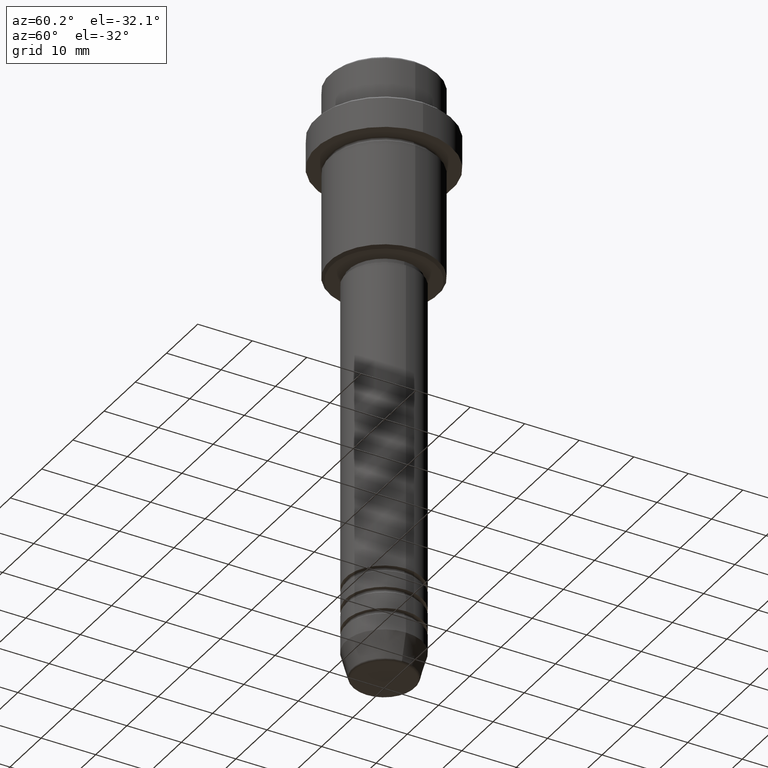
[diagram: clean part render]
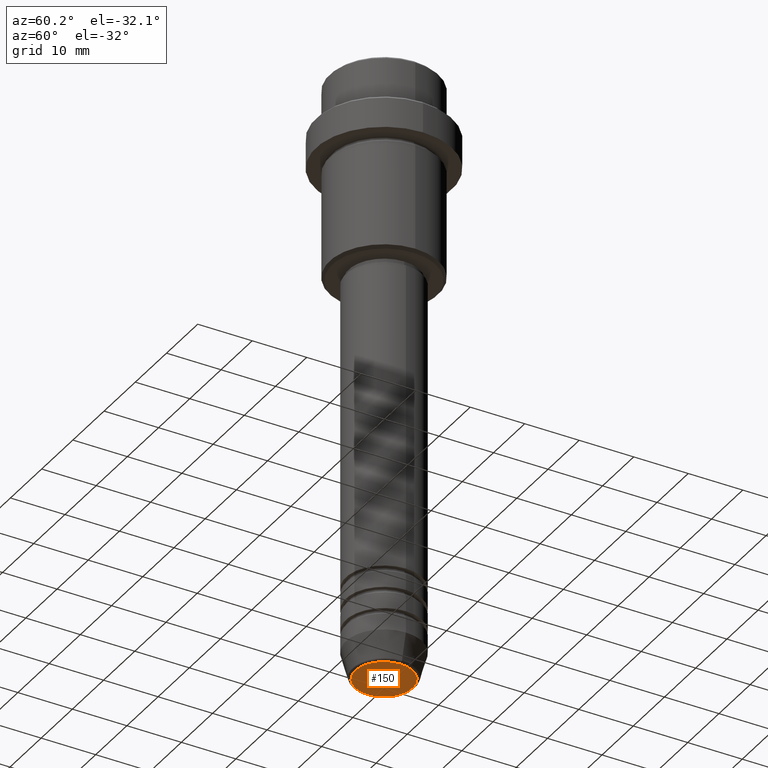
[diagram: same view with one face highlighted and labeled with its STEP entity id]
A machine part, auxiliary view. The second image highlights one B-rep face of the part: STEP entity #150.
In plain terms, the highlighted planar face has unit normal (0, -0, 1).
Its self-contained STEP definition (entity closure, byte-faithful):
#87 = DIRECTION ( 'NONE',  ( 1.000000000000000000, 0.000000000000000000, 0.000000000000000000 ) ) ;
#89 = DIRECTION ( 'NONE',  ( 0.000000000000000000, 0.000000000000000000, -1.000000000000000000 ) ) ;
#150 = ADVANCED_FACE ( 'NONE', ( #667 ), #1000, .F. ) ;
#326 = VERTEX_POINT ( 'NONE', #1057 ) ;
#447 = CIRCLE ( 'NONE', #941, 5.276590543854905668 ) ;
#449 = CARTESIAN_POINT ( 'NONE',  ( 0.000000000000000000, 0.000000000000000000, -110.9999999999999858 ) ) ;
#485 = CIRCLE ( 'NONE', #1318, 5.276590543854905668 ) ;
#496 = AXIS2_PLACEMENT_3D ( 'NONE', #449, #896, #1334 ) ;
#606 = CARTESIAN_POINT ( 'NONE',  ( 0.000000000000000000, 0.000000000000000000, -110.9999999999999858 ) ) ;
#613 = DIRECTION ( 'NONE',  ( 1.000000000000000000, 0.000000000000000000, 0.000000000000000000 ) ) ;
#667 = FACE_OUTER_BOUND ( 'NONE', #1086, .T. ) ;
#716 = CARTESIAN_POINT ( 'NONE',  ( 5.276590543854905668, 0.000000000000000000, -110.9999999999999858 ) ) ;
#754 = ORIENTED_EDGE ( 'NONE', *, *, #817, .T. ) ;
#817 = EDGE_CURVE ( 'NONE', #1329, #326, #485, .T. ) ;
#896 = DIRECTION ( 'NONE',  ( 0.000000000000000000, -0.000000000000000000, 1.000000000000000000 ) ) ;
#941 = AXIS2_PLACEMENT_3D ( 'NONE', #606, #89, #613 ) ;
#1000 = PLANE ( 'NONE',  #496 ) ;
#1057 = CARTESIAN_POINT ( 'NONE',  ( -5.276590543854905668, 6.757689212787771832E-16, -110.9999999999999858 ) ) ;
#1086 = EDGE_LOOP ( 'NONE', ( #754, #1260 ) ) ;
#1149 = CARTESIAN_POINT ( 'NONE',  ( 0.000000000000000000, 0.000000000000000000, -110.9999999999999858 ) ) ;
#1260 = ORIENTED_EDGE ( 'NONE', *, *, #1286, .T. ) ;
#1286 = EDGE_CURVE ( 'NONE', #326, #1329, #447, .T. ) ;
#1318 = AXIS2_PLACEMENT_3D ( 'NONE', #1149, #1393, #87 ) ;
#1329 = VERTEX_POINT ( 'NONE', #716 ) ;
#1334 = DIRECTION ( 'NONE',  ( 1.000000000000000000, 0.000000000000000000, 0.000000000000000000 ) ) ;
#1393 = DIRECTION ( 'NONE',  ( 0.000000000000000000, 0.000000000000000000, -1.000000000000000000 ) ) ;